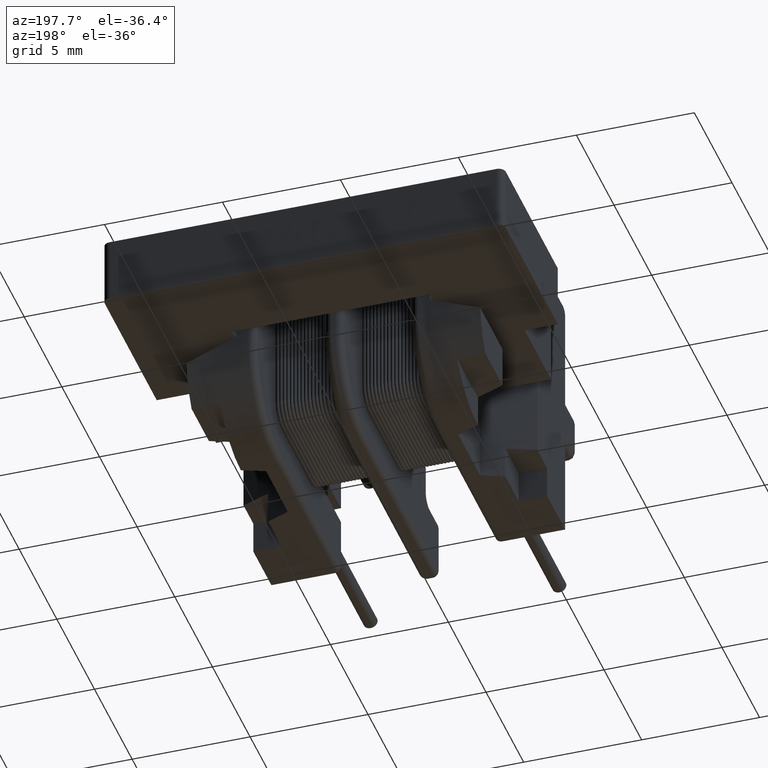
[diagram: clean part render]
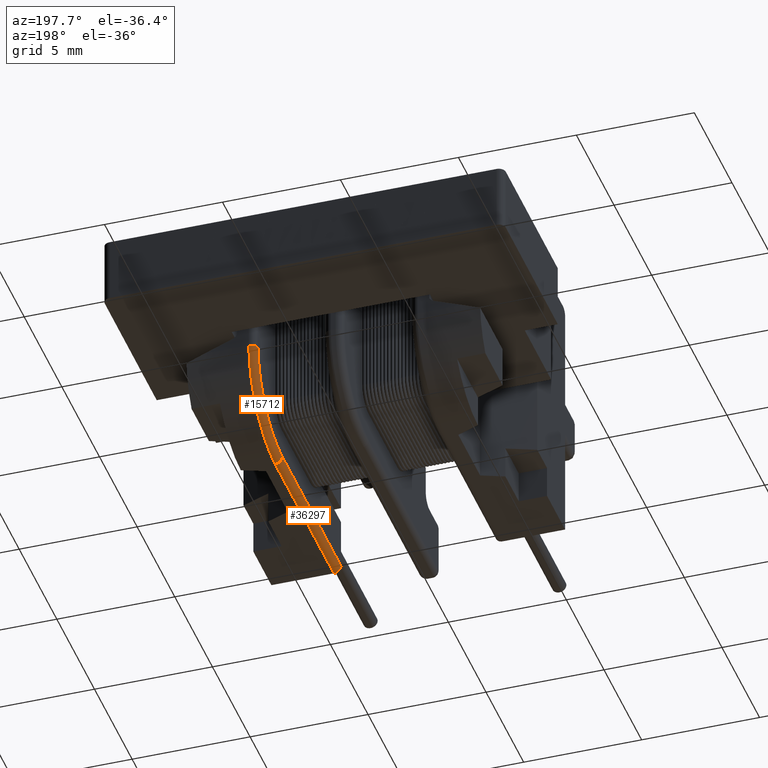
[diagram: same view with one multi-face feature highlighted, each face labeled with its STEP entity id]
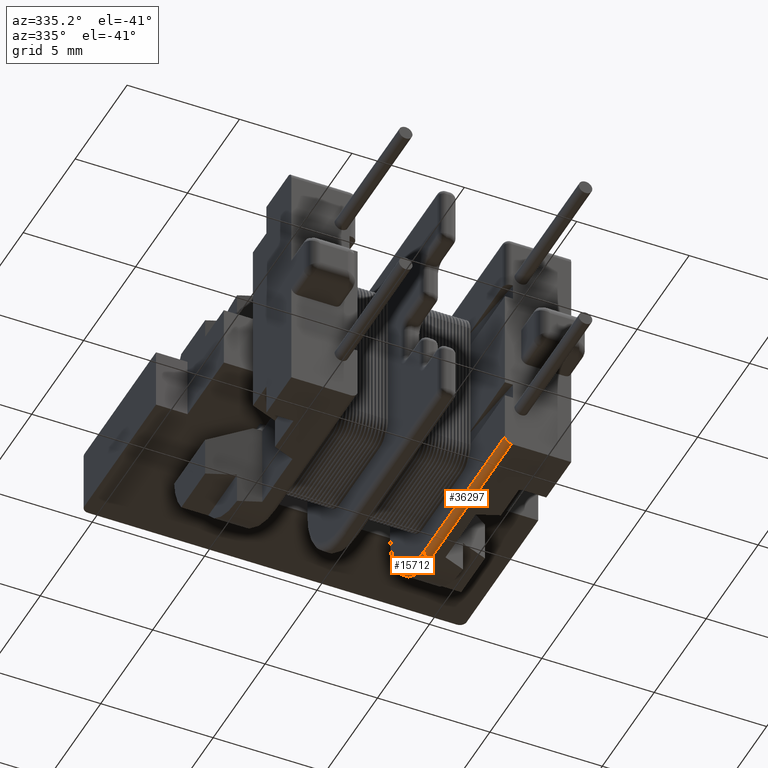
[diagram: same view with one multi-face feature highlighted, each face labeled with its STEP entity id]
A machine part, auxiliary view. The highlighted faces form ONE feature: a constant-radius fillet chain: 2 tangent blend faces with common blend radius 0.3 mm. The faces share edges in the B-rep.
A second angle (auxiliary view) of the same feature is appended — it is thin or edge-on in the first view.
Their STEP definitions:
[1] entity #36297 (Cylinder):
#655 = VERTEX_POINT ( 'NONE', #19438 ) ;
#691 = DIRECTION ( 'NONE',  ( -0.0000000000000000000, 1.000000000000000000, -1.752245935330108181E-16 ) ) ;
#2017 = LINE ( 'NONE', #6854, #36625 ) ;
#3172 = CIRCLE ( 'NONE', #9567, 0.2999999999999999334 ) ;
#4748 = CARTESIAN_POINT ( 'NONE',  ( 3.574999999999998401, 1.799999999999998712, -5.499999999999996447 ) ) ;
#5396 = CARTESIAN_POINT ( 'NONE',  ( 3.574999999999999734, 1.799999999999998712, -5.199999999999996625 ) ) ;
#6575 = VERTEX_POINT ( 'NONE', #4748 ) ;
#6769 = AXIS2_PLACEMENT_3D ( 'NONE', #7986, #8249, #35020 ) ;
#6854 = CARTESIAN_POINT ( 'NONE',  ( 3.574999999999999734, 1.799999999999998712, -5.499999999999996447 ) ) ;
#7375 = CARTESIAN_POINT ( 'NONE',  ( 3.274999999999999911, -6.000000000000003553, -5.199999999999995737 ) ) ;
#7983 = ORIENTED_EDGE ( 'NONE', *, *, #8092, .F. ) ;
#7986 = CARTESIAN_POINT ( 'NONE',  ( 3.574999999999999734, -9.111678863716555245E-16, -5.199999999999996625 ) ) ;
#8092 = EDGE_CURVE ( 'NONE', #21387, #32496, #16070, .T. ) ;
#8249 = DIRECTION ( 'NONE',  ( 0.0000000000000000000, 1.000000000000000000, -1.752245935330108181E-16 ) ) ;
#9567 = AXIS2_PLACEMENT_3D ( 'NONE', #9884, #30807, #12874 ) ;
#9884 = CARTESIAN_POINT ( 'NONE',  ( 3.574999999999999734, -6.000000000000001776, -5.199999999999995737 ) ) ;
#11852 = EDGE_CURVE ( 'NONE', #655, #6575, #2017, .T. ) ;
#12874 = DIRECTION ( 'NONE',  ( 0.0000000000000000000, 0.0000000000000000000, -1.000000000000000000 ) ) ;
#13362 = ORIENTED_EDGE ( 'NONE', *, *, #29280, .F. ) ;
#16070 = LINE ( 'NONE', #7375, #28216 ) ;
#16794 = DIRECTION ( 'NONE',  ( 0.0000000000000000000, 1.000000000000000000, 0.0000000000000000000 ) ) ;
#16983 = CARTESIAN_POINT ( 'NONE',  ( 3.275000000000000355, -6.000000000000001776, -5.199999999999996625 ) ) ;
#19438 = CARTESIAN_POINT ( 'NONE',  ( 3.574999999999998401, -6.000000000000003553, -5.499999999999995559 ) ) ;
#21207 = EDGE_LOOP ( 'NONE', ( #27594, #7983, #13362, #24620 ) ) ;
#21387 = VERTEX_POINT ( 'NONE', #22388 ) ;
#22388 = CARTESIAN_POINT ( 'NONE',  ( 3.274999999999999911, 1.799999999999998712, -5.199999999999996625 ) ) ;
#23819 = CIRCLE ( 'NONE', #27759, 0.2999999999999999334 ) ;
#24620 = ORIENTED_EDGE ( 'NONE', *, *, #11852, .F. ) ;
#26538 = EDGE_CURVE ( 'NONE', #32496, #655, #3172, .T. ) ;
#27594 = ORIENTED_EDGE ( 'NONE', *, *, #26538, .F. ) ;
#27759 = AXIS2_PLACEMENT_3D ( 'NONE', #5396, #16794, #28693 ) ;
#28216 = VECTOR ( 'NONE', #28667, 1000.000000000000000 ) ;
#28667 = DIRECTION ( 'NONE',  ( 0.0000000000000000000, -1.000000000000000000, 1.752245935330108181E-16 ) ) ;
#28693 = DIRECTION ( 'NONE',  ( 0.0000000000000000000, 0.0000000000000000000, 1.000000000000000000 ) ) ;
#29280 = EDGE_CURVE ( 'NONE', #6575, #21387, #23819, .T. ) ;
#30807 = DIRECTION ( 'NONE',  ( 0.0000000000000000000, -1.000000000000000000, 8.182657905550980744E-17 ) ) ;
#31428 = CYLINDRICAL_SURFACE ( 'NONE', #6769, 0.2999999999999999334 ) ;
#32496 = VERTEX_POINT ( 'NONE', #16983 ) ;
#35020 = DIRECTION ( 'NONE',  ( 0.0000000000000000000, 1.752245935330106949E-16, 1.000000000000000000 ) ) ;
#35178 = FACE_OUTER_BOUND ( 'NONE', #21207, .T. ) ;
#36297 = ADVANCED_FACE ( 'NONE', ( #35178 ), #31428, .T. ) ;
#36625 = VECTOR ( 'NONE', #691, 1000.000000000000000 ) ;
[2] entity #15712 (Torus):
#1116 = ORIENTED_EDGE ( 'NONE', *, *, #1602, .F. ) ;
#1602 = EDGE_CURVE ( 'NONE', #17130, #21387, #12286, .T. ) ;
#1774 = AXIS2_PLACEMENT_3D ( 'NONE', #15198, #36132, #24593 ) ;
#2369 = FACE_OUTER_BOUND ( 'NONE', #25109, .T. ) ;
#4748 = CARTESIAN_POINT ( 'NONE',  ( 3.574999999999998401, 1.799999999999998712, -5.499999999999996447 ) ) ;
#5396 = CARTESIAN_POINT ( 'NONE',  ( 3.574999999999999734, 1.799999999999998712, -5.199999999999996625 ) ) ;
#5717 = CARTESIAN_POINT ( 'NONE',  ( 3.274999999999999911, 4.999999999999999112, -1.999999999999996669 ) ) ;
#6575 = VERTEX_POINT ( 'NONE', #4748 ) ;
#9561 = EDGE_CURVE ( 'NONE', #25323, #17130, #33249, .T. ) ;
#10325 = DIRECTION ( 'NONE',  ( 0.0000000000000000000, -0.0000000000000000000, 1.000000000000000000 ) ) ;
#12286 = CIRCLE ( 'NONE', #1774, 3.200000000000000622 ) ;
#13350 = DIRECTION ( 'NONE',  ( 1.000000000000000000, 0.0000000000000000000, -0.0000000000000000000 ) ) ;
#15198 = CARTESIAN_POINT ( 'NONE',  ( 3.274999999999999911, 1.799999999999999378, -1.999999999999995781 ) ) ;
#15488 = ORIENTED_EDGE ( 'NONE', *, *, #9561, .F. ) ;
#15712 = ADVANCED_FACE ( 'NONE', ( #2369 ), #36050, .T. ) ;
#16794 = DIRECTION ( 'NONE',  ( 0.0000000000000000000, 1.000000000000000000, 0.0000000000000000000 ) ) ;
#17130 = VERTEX_POINT ( 'NONE', #5717 ) ;
#17699 = AXIS2_PLACEMENT_3D ( 'NONE', #25872, #38064, #31632 ) ;
#20763 = AXIS2_PLACEMENT_3D ( 'NONE', #31149, #13350, #25134 ) ;
#21387 = VERTEX_POINT ( 'NONE', #22388 ) ;
#22388 = CARTESIAN_POINT ( 'NONE',  ( 3.274999999999999911, 1.799999999999998712, -5.199999999999996625 ) ) ;
#23024 = EDGE_CURVE ( 'NONE', #6575, #25323, #29716, .T. ) ;
#23819 = CIRCLE ( 'NONE', #27759, 0.2999999999999999334 ) ;
#24157 = ORIENTED_EDGE ( 'NONE', *, *, #29280, .T. ) ;
#24593 = DIRECTION ( 'NONE',  ( 0.0000000000000000000, -8.809142651444721554E-16, -1.000000000000000000 ) ) ;
#25109 = EDGE_LOOP ( 'NONE', ( #24157, #1116, #15488, #33363 ) ) ;
#25134 = DIRECTION ( 'NONE',  ( 0.0000000000000000000, 0.0000000000000000000, -1.000000000000000000 ) ) ;
#25323 = VERTEX_POINT ( 'NONE', #37918 ) ;
#25872 = CARTESIAN_POINT ( 'NONE',  ( 3.574999999999998401, 1.799999999999999378, -1.999999999999995781 ) ) ;
#27759 = AXIS2_PLACEMENT_3D ( 'NONE', #5396, #16794, #28693 ) ;
#28201 = CARTESIAN_POINT ( 'NONE',  ( 3.574999999999998401, 4.999999999999999112, -1.999999999999996669 ) ) ;
#28693 = DIRECTION ( 'NONE',  ( 0.0000000000000000000, 0.0000000000000000000, 1.000000000000000000 ) ) ;
#29280 = EDGE_CURVE ( 'NONE', #6575, #21387, #23819, .T. ) ;
#29716 = CIRCLE ( 'NONE', #17699, 3.500000000000000444 ) ;
#29718 = AXIS2_PLACEMENT_3D ( 'NONE', #28201, #10325, #34223 ) ;
#31149 = CARTESIAN_POINT ( 'NONE',  ( 3.574999999999998401, 1.799999999999999378, -1.999999999999995781 ) ) ;
#31632 = DIRECTION ( 'NONE',  ( 0.0000000000000000000, 0.0000000000000000000, -1.000000000000000000 ) ) ;
#33249 = CIRCLE ( 'NONE', #29718, 0.2999999999999999334 ) ;
#33363 = ORIENTED_EDGE ( 'NONE', *, *, #23024, .F. ) ;
#34223 = DIRECTION ( 'NONE',  ( 1.000000000000000000, 0.0000000000000000000, 0.0000000000000000000 ) ) ;
#36050 = TOROIDAL_SURFACE ( 'NONE', #20763, 3.200000000000000178, 0.2999999999999999889 ) ;
#36132 = DIRECTION ( 'NONE',  ( -1.000000000000000000, -0.0000000000000000000, 0.0000000000000000000 ) ) ;
#37918 = CARTESIAN_POINT ( 'NONE',  ( 3.574999999999998401, 5.299999999999998934, -1.999999999999996669 ) ) ;
#38064 = DIRECTION ( 'NONE',  ( 1.000000000000000000, 0.0000000000000000000, -0.0000000000000000000 ) ) ;